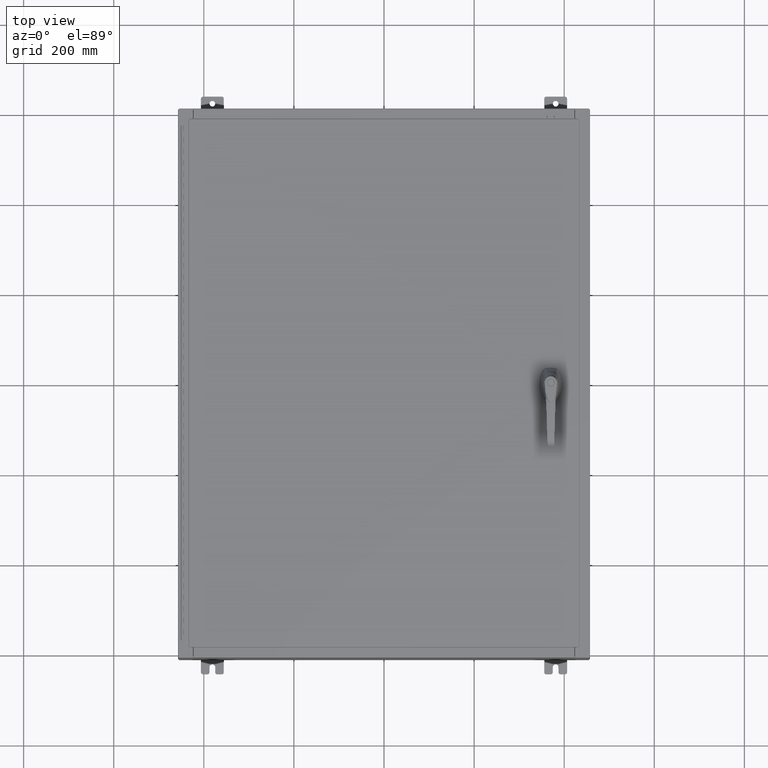
[diagram: clean part render]
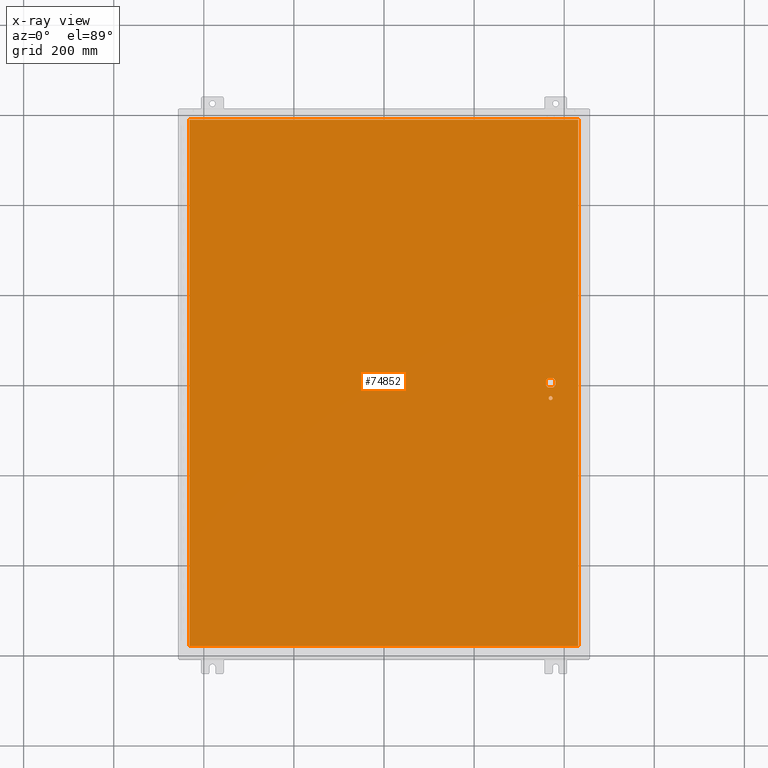
[diagram: x-ray — body ghosted, one internal face saturated and labeled with its STEP entity id]
A machine part, top view, then the same camera in x-ray: the body is ghosted and one INTERNAL B-rep face — a face not visible from any outside direction — is saturated and labeled: STEP entity #74852.
In plain terms, the highlighted planar face has unit normal (0, 0, -1).
Its self-contained STEP definition (entity closure, byte-faithful):
#1350 = CARTESIAN_POINT ( 'NONE',  ( 14.37777262924369000, -0.4029999999999250300, -0.07470000000000003000 ) ) ;
#1998 = VECTOR ( 'NONE', #132963, 39.37007874015748100 ) ;
#5962 = EDGE_LOOP ( 'NONE', ( #7682, #80703, #33697, #12166 ) ) ;
#6444 = ORIENTED_EDGE ( 'NONE', *, *, #90711, .F. ) ;
#6772 = CARTESIAN_POINT ( 'NONE',  ( 14.98099999999992700, 0.2002273707563075900, -0.07470000000000003000 ) ) ;
#7682 = ORIENTED_EDGE ( 'NONE', *, *, #19125, .F. ) ;
#8805 = CARTESIAN_POINT ( 'NONE',  ( -16.99029999999999800, -23.00630000000000300, -0.07469999999999804600 ) ) ;
#12166 = ORIENTED_EDGE ( 'NONE', *, *, #15108, .F. ) ;
#12384 = DIRECTION ( 'NONE',  ( 0.0000000000000000000, 1.000000000000000000, 0.0000000000000000000 ) ) ;
#13841 = DIRECTION ( 'NONE',  ( -0.0000000000000000000, -0.0000000000000000000, 1.000000000000000000 ) ) ;
#15108 = EDGE_CURVE ( 'NONE', #128103, #58404, #85855, .T. ) ;
#15806 = LINE ( 'NONE', #59558, #95328 ) ;
#16306 = CARTESIAN_POINT ( 'NONE',  ( 14.17500000000007400, 0.2002273707563075900, -0.07470000000000003000 ) ) ;
#17691 = DIRECTION ( 'NONE',  ( 0.0000000000000000000, -1.000000000000000000, 0.0000000000000000000 ) ) ;
#18422 = CIRCLE ( 'NONE', #133575, 0.4499999999999168000 ) ;
#19125 = EDGE_CURVE ( 'NONE', #23812, #128103, #57530, .T. ) ;
#19743 = CARTESIAN_POINT ( 'NONE',  ( 14.98099999999992700, 8.175868191945441800E-014, -0.07470000000000003000 ) ) ;
#21192 = ORIENTED_EDGE ( 'NONE', *, *, #65380, .T. ) ;
#21362 = EDGE_CURVE ( 'NONE', #119005, #44465, #32899, .T. ) ;
#23152 = VERTEX_POINT ( 'NONE', #78319 ) ;
#23417 = CARTESIAN_POINT ( 'NONE',  ( 0.0000000000000000000, 0.4029999999999252000, -0.07470000000000003000 ) ) ;
#23600 = CARTESIAN_POINT ( 'NONE',  ( 14.57799999999999900, -1.338000000000000100, -0.07470000000000003000 ) ) ;
#23812 = VERTEX_POINT ( 'NONE', #58155 ) ;
#25191 = VECTOR ( 'NONE', #92245, 39.37007874015748100 ) ;
#26675 = VERTEX_POINT ( 'NONE', #134393 ) ;
#26956 = FACE_BOUND ( 'NONE', #42778, .T. ) ;
#27112 = ORIENTED_EDGE ( 'NONE', *, *, #91605, .T. ) ;
#29117 = CARTESIAN_POINT ( 'NONE',  ( 14.57799999999999900, 0.0000000000000000000, -0.07470000000000003000 ) ) ;
#30662 = VECTOR ( 'NONE', #131358, 39.37007874015748100 ) ;
#31137 = CARTESIAN_POINT ( 'NONE',  ( 14.37777262924369000, 0.4029999999999252000, -0.07470000000000003000 ) ) ;
#31382 = PLANE ( 'NONE',  #41565 ) ;
#31541 = LINE ( 'NONE', #108915, #111029 ) ;
#31557 = VERTEX_POINT ( 'NONE', #31137 ) ;
#32899 = CIRCLE ( 'NONE', #108795, 0.4499999999999168000 ) ;
#33697 = ORIENTED_EDGE ( 'NONE', *, *, #131961, .F. ) ;
#34018 = DIRECTION ( 'NONE',  ( -1.000000000000000000, 0.0000000000000000000, 0.0000000000000000000 ) ) ;
#35107 = EDGE_CURVE ( 'NONE', #51207, #23812, #70140, .T. ) ;
#39007 = CARTESIAN_POINT ( 'NONE',  ( 14.57799999999999900, 0.0000000000000000000, -0.07470000000000003000 ) ) ;
#39567 = DIRECTION ( 'NONE',  ( -1.000000000000000000, -1.776356839400246700E-015, 0.0000000000000000000 ) ) ;
#40153 = LINE ( 'NONE', #40309, #93943 ) ;
#40309 = CARTESIAN_POINT ( 'NONE',  ( 14.17500000000007400, 0.0000000000000000000, -0.07470000000000003000 ) ) ;
#41565 = AXIS2_PLACEMENT_3D ( 'NONE', #93487, #103905, #41781 ) ;
#41781 = DIRECTION ( 'NONE',  ( -1.000000000000000000, 0.0000000000000000000, -0.0000000000000000000 ) ) ;
#42492 = EDGE_CURVE ( 'NONE', #26675, #133401, #18422, .T. ) ;
#42640 = CARTESIAN_POINT ( 'NONE',  ( -16.99029999999999400, 23.00630000000000300, -0.07470000000000000300 ) ) ;
#42778 = EDGE_LOOP ( 'NONE', ( #53310, #6444, #83841, #114513, #129776, #21192, #78597, #85630 ) ) ;
#42972 = CARTESIAN_POINT ( 'NONE',  ( 14.57799999999999900, 0.0000000000000000000, -0.07470000000000003000 ) ) ;
#44455 = DIRECTION ( 'NONE',  ( -0.0000000000000000000, -0.0000000000000000000, 1.000000000000000000 ) ) ;
#44465 = VERTEX_POINT ( 'NONE', #77141 ) ;
#49392 = DIRECTION ( 'NONE',  ( -1.000000000000000000, -1.776356839400246700E-015, 0.0000000000000000000 ) ) ;
#51207 = VERTEX_POINT ( 'NONE', #53297 ) ;
#51275 = FACE_OUTER_BOUND ( 'NONE', #5962, .T. ) ;
#51518 = CARTESIAN_POINT ( 'NONE',  ( 14.74950000000000100, -1.338000000000000100, -0.07470000000000003000 ) ) ;
#51697 = CIRCLE ( 'NONE', #116386, 0.4499999999999168000 ) ;
#51974 = CIRCLE ( 'NONE', #68546, 0.4499999999999168000 ) ;
#52095 = CARTESIAN_POINT ( 'NONE',  ( 16.99029999999999800, 23.00630000000000300, -0.07470000000000000300 ) ) ;
#52644 = CIRCLE ( 'NONE', #99981, 0.1715000000000011500 ) ;
#52769 = LINE ( 'NONE', #19743, #25191 ) ;
#53297 = CARTESIAN_POINT ( 'NONE',  ( -16.99029999999999800, -23.00630000000000000, -0.07470000000000000300 ) ) ;
#53310 = ORIENTED_EDGE ( 'NONE', *, *, #42492, .T. ) ;
#53364 = DIRECTION ( 'NONE',  ( -1.000000000000000000, -5.329070518200740300E-015, 0.0000000000000000000 ) ) ;
#53572 = AXIS2_PLACEMENT_3D ( 'NONE', #106626, #44455, #117021 ) ;
#57530 = LINE ( 'NONE', #115734, #81956 ) ;
#58155 = CARTESIAN_POINT ( 'NONE',  ( 16.99029999999999800, -23.00630000000000000, -0.07470000000000000300 ) ) ;
#58404 = VERTEX_POINT ( 'NONE', #42640 ) ;
#59558 = CARTESIAN_POINT ( 'NONE',  ( -16.99029999999999400, 23.00630000000001000, -0.07470000000000129300 ) ) ;
#62394 = EDGE_CURVE ( 'NONE', #80409, #89904, #51974, .T. ) ;
#64743 = CARTESIAN_POINT ( 'NONE',  ( 14.98099999999992700, -0.2002273707563067300, -0.07470000000000003000 ) ) ;
#65380 = EDGE_CURVE ( 'NONE', #134511, #80409, #40153, .T. ) ;
#68546 = AXIS2_PLACEMENT_3D ( 'NONE', #39007, #111580, #49392 ) ;
#69242 = CARTESIAN_POINT ( 'NONE',  ( 16.99029999999999800, 23.00630000000001000, -0.07469999999999804600 ) ) ;
#69975 = DIRECTION ( 'NONE',  ( 0.0000000000000000000, -1.000000000000000000, 0.0000000000000000000 ) ) ;
#70140 = LINE ( 'NONE', #8805, #1998 ) ;
#74852 = ADVANCED_FACE ( 'NONE', ( #109729, #51275, #26956 ), #31382, .T. ) ;
#75962 = CARTESIAN_POINT ( 'NONE',  ( 14.57799999999999900, 0.0000000000000000000, -0.07470000000000003000 ) ) ;
#77141 = CARTESIAN_POINT ( 'NONE',  ( 14.77822737075630900, 0.4029999999999250300, -0.07470000000000003000 ) ) ;
#78319 = CARTESIAN_POINT ( 'NONE',  ( 14.40649999999999800, -1.338000000000000100, -0.07470000000000003000 ) ) ;
#78597 = ORIENTED_EDGE ( 'NONE', *, *, #62394, .T. ) ;
#80409 = VERTEX_POINT ( 'NONE', #128653 ) ;
#80703 = ORIENTED_EDGE ( 'NONE', *, *, #35107, .F. ) ;
#81956 = VECTOR ( 'NONE', #12384, 39.37007874015748100 ) ;
#83841 = ORIENTED_EDGE ( 'NONE', *, *, #21362, .T. ) ;
#85630 = ORIENTED_EDGE ( 'NONE', *, *, #123830, .T. ) ;
#85855 = LINE ( 'NONE', #69242, #30662 ) ;
#86393 = DIRECTION ( 'NONE',  ( -1.000000000000000000, -5.329070518200740300E-015, 0.0000000000000000000 ) ) ;
#89904 = VERTEX_POINT ( 'NONE', #1350 ) ;
#90384 = EDGE_CURVE ( 'NONE', #44465, #31557, #124238, .T. ) ;
#90711 = EDGE_CURVE ( 'NONE', #119005, #133401, #52769, .T. ) ;
#91605 = EDGE_CURVE ( 'NONE', #124704, #23152, #52644, .T. ) ;
#92245 = DIRECTION ( 'NONE',  ( 5.457491617345625800E-015, -1.000000000000000000, 0.0000000000000000000 ) ) ;
#93487 = CARTESIAN_POINT ( 'NONE',  ( 0.0000000000000000000, 0.0000000000000000000, -0.07470000000000000300 ) ) ;
#93943 = VECTOR ( 'NONE', #17691, 39.37007874015748100 ) ;
#95328 = VECTOR ( 'NONE', #69975, 39.37007874015748100 ) ;
#95518 = DIRECTION ( 'NONE',  ( -1.000000000000000000, 0.0000000000000000000, 0.0000000000000000000 ) ) ;
#96151 = DIRECTION ( 'NONE',  ( -0.0000000000000000000, -0.0000000000000000000, 1.000000000000000000 ) ) ;
#99887 = VECTOR ( 'NONE', #95518, 39.37007874015748100 ) ;
#99981 = AXIS2_PLACEMENT_3D ( 'NONE', #23600, #96151, #34018 ) ;
#100103 = EDGE_CURVE ( 'NONE', #23152, #124704, #119665, .T. ) ;
#101683 = DIRECTION ( 'NONE',  ( -0.0000000000000000000, -0.0000000000000000000, 1.000000000000000000 ) ) ;
#103905 = DIRECTION ( 'NONE',  ( 0.0000000000000000000, 0.0000000000000000000, -1.000000000000000000 ) ) ;
#106626 = CARTESIAN_POINT ( 'NONE',  ( 14.57799999999999900, -1.338000000000000100, -0.07470000000000003000 ) ) ;
#108795 = AXIS2_PLACEMENT_3D ( 'NONE', #42972, #115526, #53364 ) ;
#108915 = CARTESIAN_POINT ( 'NONE',  ( 0.0000000000000000000, -0.4029999999999252000, -0.07470000000000003000 ) ) ;
#109729 = FACE_BOUND ( 'NONE', #114109, .T. ) ;
#111029 = VECTOR ( 'NONE', #119327, 39.37007874015748100 ) ;
#111580 = DIRECTION ( 'NONE',  ( -0.0000000000000000000, -0.0000000000000000000, 1.000000000000000000 ) ) ;
#114109 = EDGE_LOOP ( 'NONE', ( #27112, #131535 ) ) ;
#114513 = ORIENTED_EDGE ( 'NONE', *, *, #90384, .T. ) ;
#115526 = DIRECTION ( 'NONE',  ( -0.0000000000000000000, -0.0000000000000000000, 1.000000000000000000 ) ) ;
#115734 = CARTESIAN_POINT ( 'NONE',  ( 16.99029999999999800, -23.00630000000000300, -0.07470000000000019700 ) ) ;
#116386 = AXIS2_PLACEMENT_3D ( 'NONE', #75962, #13841, #86393 ) ;
#117021 = DIRECTION ( 'NONE',  ( -1.000000000000000000, 0.0000000000000000000, 0.0000000000000000000 ) ) ;
#117062 = EDGE_CURVE ( 'NONE', #31557, #134511, #51697, .T. ) ;
#119005 = VERTEX_POINT ( 'NONE', #6772 ) ;
#119327 = DIRECTION ( 'NONE',  ( 1.000000000000000000, 0.0000000000000000000, 0.0000000000000000000 ) ) ;
#119665 = CIRCLE ( 'NONE', #53572, 0.1715000000000011500 ) ;
#123830 = EDGE_CURVE ( 'NONE', #89904, #26675, #31541, .T. ) ;
#124238 = LINE ( 'NONE', #23417, #99887 ) ;
#124704 = VERTEX_POINT ( 'NONE', #51518 ) ;
#128103 = VERTEX_POINT ( 'NONE', #52095 ) ;
#128653 = CARTESIAN_POINT ( 'NONE',  ( 14.17500000000007400, -0.2002273707563079800, -0.07470000000000003000 ) ) ;
#129776 = ORIENTED_EDGE ( 'NONE', *, *, #117062, .T. ) ;
#131358 = DIRECTION ( 'NONE',  ( -1.000000000000000000, -0.0000000000000000000, -0.0000000000000000000 ) ) ;
#131535 = ORIENTED_EDGE ( 'NONE', *, *, #100103, .T. ) ;
#131961 = EDGE_CURVE ( 'NONE', #58404, #51207, #15806, .T. ) ;
#132963 = DIRECTION ( 'NONE',  ( 1.000000000000000000, -0.0000000000000000000, -0.0000000000000000000 ) ) ;
#133401 = VERTEX_POINT ( 'NONE', #64743 ) ;
#133575 = AXIS2_PLACEMENT_3D ( 'NONE', #29117, #101683, #39567 ) ;
#134393 = CARTESIAN_POINT ( 'NONE',  ( 14.77822737075630900, -0.4029999999999252000, -0.07470000000000003000 ) ) ;
#134511 = VERTEX_POINT ( 'NONE', #16306 ) ;